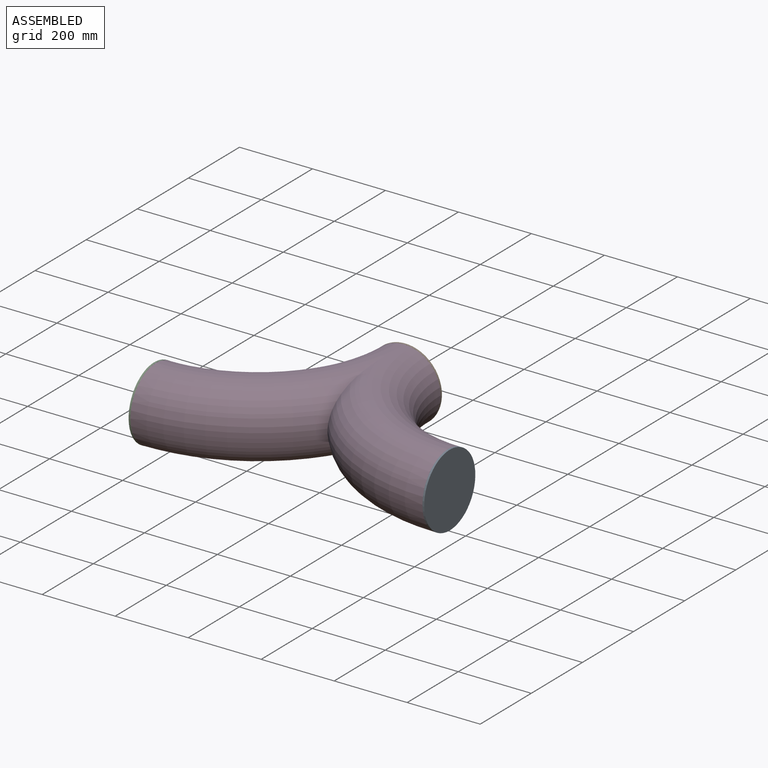
[diagram: assembled view]
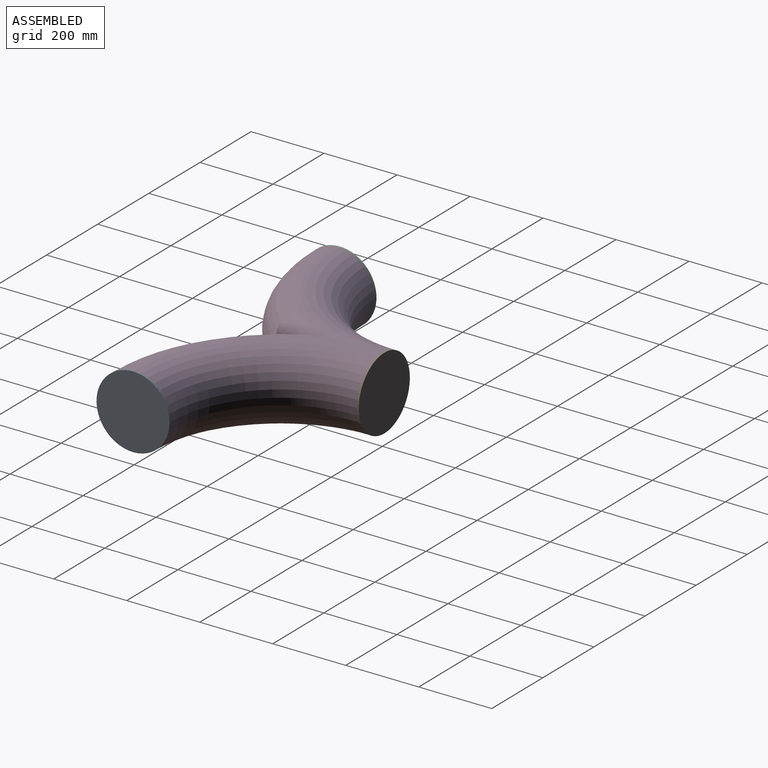
[diagram: assembled view, second angle]
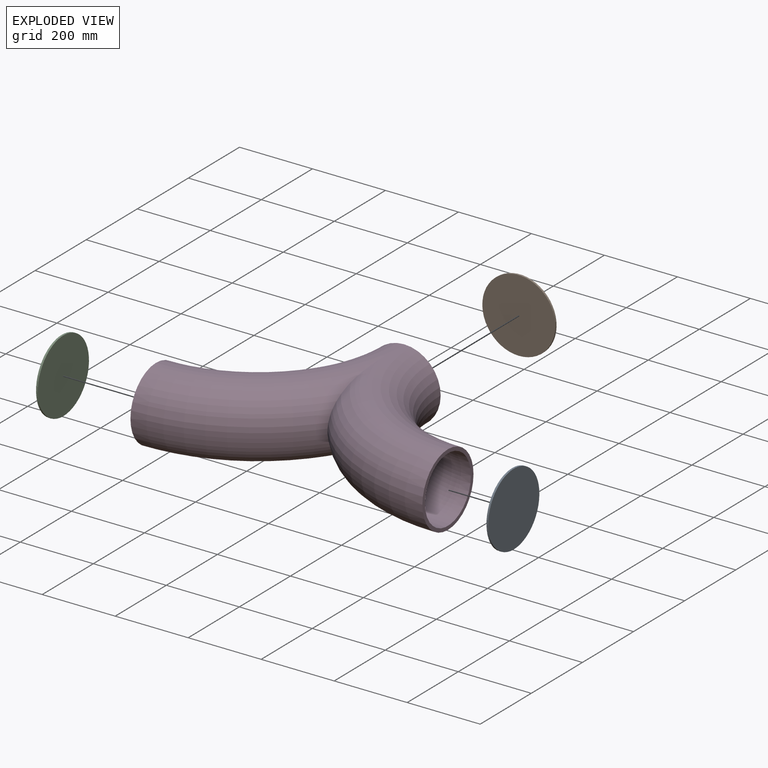
[diagram: exploded view]
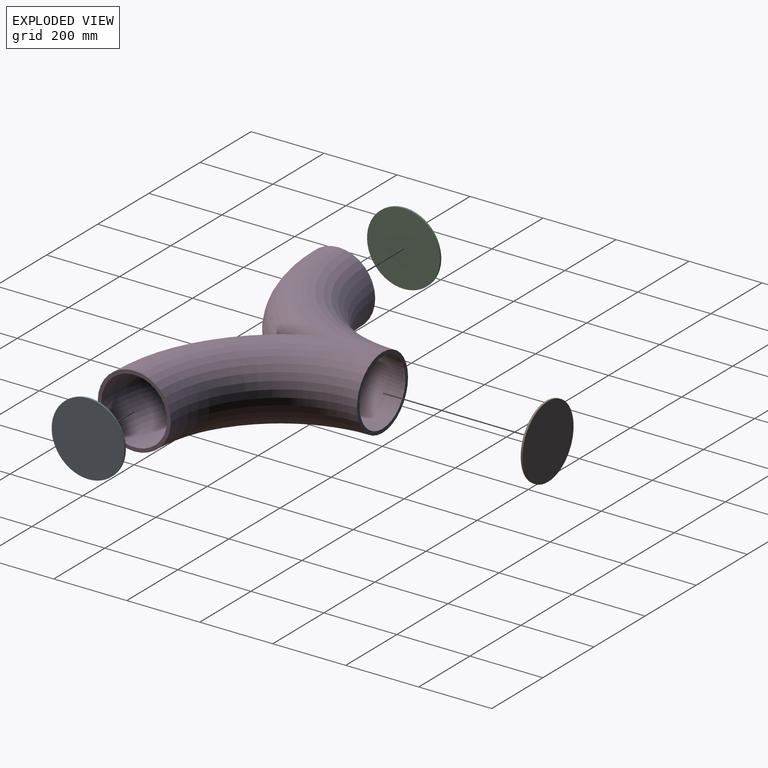
[diagram: exploded view, second angle]
ASSEMBLY  parts=4 mates=3
PART A: 3 faces, bbox 200x5x200 mm
  f0: cylinder r=100mm len=200mm, axis (0,1,0), area 3141.6mm2, adj f1,f2
  f1: plane 200x200mm, normal (0,-1,0), area 31415.9mm2, adj f0
  f2: plane 200x200mm, normal (0,1,0), area 31415.9mm2, adj f0
PART B: same geometry as A
PART C: same geometry as A
PART D: 7 faces, bbox 800x541.2x200 mm
  f0: plane 200x200mm, normal (0,1,0), area 5969mm2, adj f2,f4,f5,f6
  f1: plane 200x200mm, normal (-1,0,0), area 5969mm2, adj f2,f5
  f2: torus R=400mm, axis (0,0,-1), area 245542mm2, adj f0,f1,f4
  f3: plane 200x200mm, normal (1,0,0), area 5969mm2, adj f4,f6
  f4: torus R=400mm, axis (0,0,-1), area 474229.6mm2, adj f0,f2,f3
  f5: torus R=400mm, axis (0,0,-1), area 292136.5mm2, adj f0,f1,f6
  f6: torus R=400mm, axis (0,0,-1), area 292130.1mm2, adj f0,f3,f5
PLACE A rot(axis=(0,0,1),90deg) t=(167.25,-622.34,-480.32)mm
PLACE B t=(-232.75,-217.34,-480.32)mm
PLACE C rot(axis=(0,0,1),90deg) t=(-637.75,-622.34,-480.32)mm
PLACE D t=(-232.75,-222.34,-480.32)mm
MATE fastened C.f0 <-> D.f1  axis (1,0,0) through (-632.75,-622.34,-480.32)mm
MATE fastened A.f0 <-> D.f3  axis (-1,0,0) through (167.25,-622.34,-480.32)mm
MATE fastened B.f0 <-> D.f0  axis (0,-1,0) through (-232.75,-222.34,-480.32)mm
